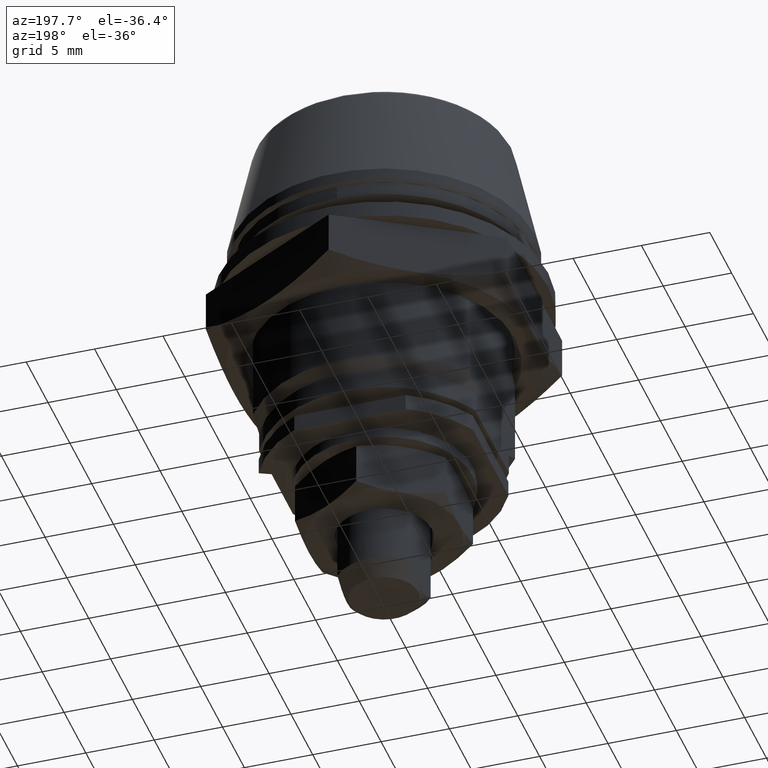
[diagram: clean part render]
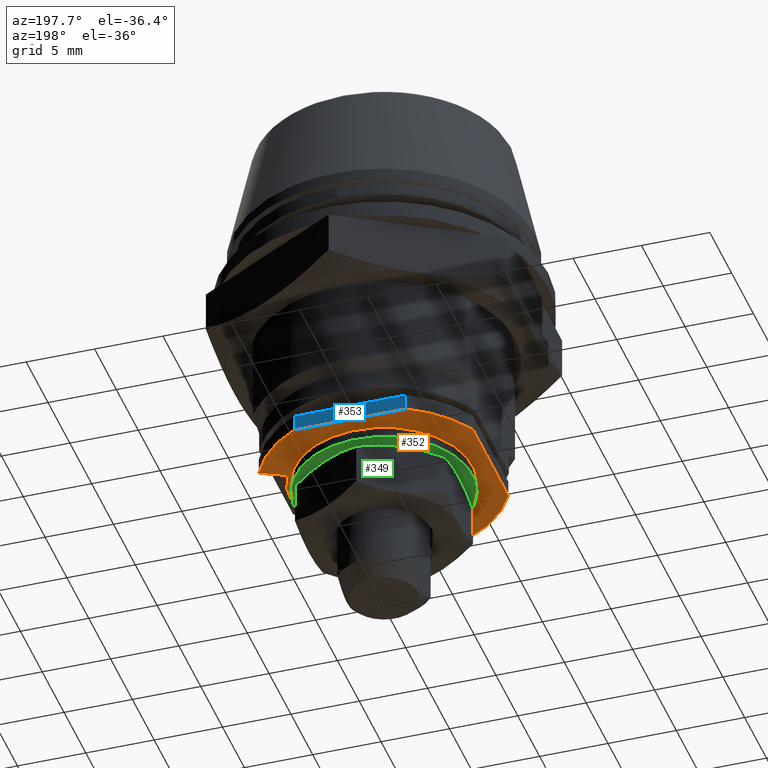
[diagram: same view with three faces highlighted in distinct colors, each labeled with its STEP entity id]
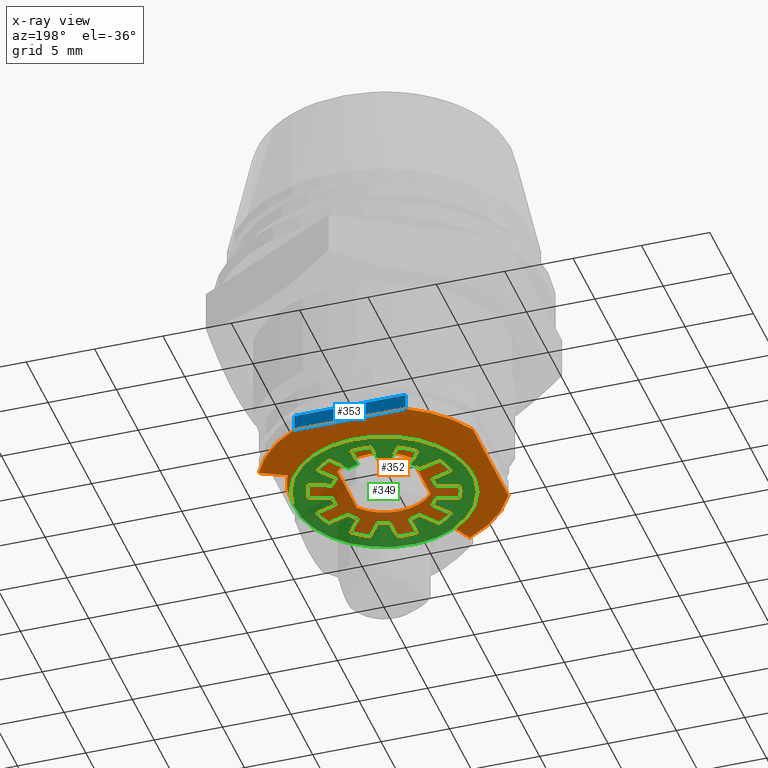
[diagram: x-ray of the same camera — body ghosted, the three highlighted faces saturated]
A machine part, auxiliary view with three faces highlighted in distinct colors.
The next image is the same camera in x-ray (body ghosted, the three faces saturated) — at least one of them is partly hidden behind the body in this view.
Their STEP definitions:

[orange] entity #352 — the highlighted planar face has unit normal (0, 0, -1).
#352=ADVANCED_FACE('',(#1342,#1343),#1341,.T.);
#1341=PLANE('',#2489);
#1342=FACE_OUTER_BOUND('',#2490,.T.);
#1343=FACE_BOUND('',#2491,.T.);
#2486=CARTESIAN_POINT('',(9.77266753242E+000,-9.77266753244E+000,-2.13000000000E+001));
#2487=DIRECTION('',(0.00000000000E+000,0.00000000000E+000,-1.00000000000E+000));
#2488=DIRECTION('',(-1.00000000000E+000,0.00000000000E+000,0.00000000000E+000));
#2489=AXIS2_PLACEMENT_3D('',#2486,#2487,#2488);
#2490=EDGE_LOOP('',(#3364,#3365,#3366,#3367,#3368,#3369,#3370,#3371));
#2491=EDGE_LOOP('',(#3372,#3373,#3374,#3375));
#3364=ORIENTED_EDGE('',*,*,#3900,.F.);
#3365=ORIENTED_EDGE('',*,*,#3901,.F.);
#3366=ORIENTED_EDGE('',*,*,#3902,.F.);
#3367=ORIENTED_EDGE('',*,*,#3903,.F.);
#3368=ORIENTED_EDGE('',*,*,#3904,.F.);
#3369=ORIENTED_EDGE('',*,*,#3905,.F.);
#3370=ORIENTED_EDGE('',*,*,#3906,.F.);
#3371=ORIENTED_EDGE('',*,*,#3907,.F.);
#3372=ORIENTED_EDGE('',*,*,#3908,.T.);
#3373=ORIENTED_EDGE('',*,*,#3909,.F.);
#3374=ORIENTED_EDGE('',*,*,#3910,.T.);
#3375=ORIENTED_EDGE('',*,*,#3911,.F.);
#3900=EDGE_CURVE('',#5579,#5580,#5581,.T.);
#3901=EDGE_CURVE('',#5587,#5579,#5588,.T.);
#3902=EDGE_CURVE('',#5594,#5587,#5595,.T.);
#3903=EDGE_CURVE('',#5601,#5594,#5602,.T.);
#3904=EDGE_CURVE('',#5608,#5601,#5609,.T.);
#3905=EDGE_CURVE('',#5615,#5608,#5616,.T.);
#3906=EDGE_CURVE('',#5622,#5615,#5623,.T.);
#3907=EDGE_CURVE('',#5580,#5622,#5629,.T.);
#3908=EDGE_CURVE('',#5635,#5636,#5637,.T.);
#3909=EDGE_CURVE('',#5643,#5636,#5644,.T.);
#3910=EDGE_CURVE('',#5643,#5650,#5651,.T.);
#3911=EDGE_CURVE('',#5635,#5650,#5657,.T.);
#5579=VERTEX_POINT('',#7540);
#5580=VERTEX_POINT('',#7541);
#5581=CIRCLE('',#7545,8.80000000000E+000);
#5587=VERTEX_POINT('',#7546);
#5588=LINE('',#7547,#7548);
#5594=VERTEX_POINT('',#7550);
#5595=CIRCLE('',#7554,8.79999999985E+000);
#5601=VERTEX_POINT('',#7555);
#5602=LINE('',#7556,#7557);
#5608=VERTEX_POINT('',#7559);
#5609=CIRCLE('',#7563,6.80000000021E+000);
#5615=VERTEX_POINT('',#7564);
#5616=LINE('',#7565,#7566);
#5622=VERTEX_POINT('',#7568);
#5623=CIRCLE('',#7572,8.80000000009E+000);
#5629=LINE('',#7573,#7574);
#5635=VERTEX_POINT('',#7576);
#5636=VERTEX_POINT('',#7577);
#5637=LINE('',#7578,#7579);
#5643=VERTEX_POINT('',#7581);
#5644=CIRCLE('',#7585,3.50000000014E+000);
#5650=VERTEX_POINT('',#7586);
#5651=LINE('',#7587,#7588);
#5657=CIRCLE('',#7593,3.50000000014E+000);
#7540=CARTESIAN_POINT('',(-4.07430975700E+000,7.80000000000E+000,-2.13000000000E+001));
#7541=CARTESIAN_POINT('',(-7.80000000000E+000,4.07430975800E+000,-2.13000000000E+001));
#7542=CARTESIAN_POINT('',(0.00000000000E+000,0.00000000000E+000,-2.13000000000E+001));
#7543=DIRECTION('',(0.00000000000E+000,0.00000000000E+000,1.00000000000E+000));
#7544=DIRECTION('',(4.62989745126E-001,-8.86363636387E-001,-0.00000000000E+000));
#7545=AXIS2_PLACEMENT_3D('',#7542,#7543,#7544);
#7546=CARTESIAN_POINT('',(4.07430975700E+000,7.80000000000E+000,-2.13000000000E+001));
#7547=CARTESIAN_POINT('',(4.07430975700E+000,7.80000000000E+000,-2.13000000000E+001));
#7548=VECTOR('',#7549,8.14861951400E+000);
#7549=DIRECTION('',(-1.00000000000E+000,0.00000000000E+000,0.00000000000E+000));
#7550=CARTESIAN_POINT('',(7.97550852600E+000,3.71904070300E+000,-2.13000000000E+001));
#7551=CARTESIAN_POINT('',(0.00000000000E+000,0.00000000000E+000,-2.13000000000E+001));
#7552=DIRECTION('',(0.00000000000E+000,-0.00000000000E+000,1.00000000000E+000));
#7553=DIRECTION('',(-9.06307787052E-001,-4.22618261708E-001,-0.00000000000E+000));
#7554=AXIS2_PLACEMENT_3D('',#7551,#7552,#7553);
#7555=CARTESIAN_POINT('',(6.16289295200E+000,2.87380418000E+000,-2.13000000000E+001));
#7556=CARTESIAN_POINT('',(6.16289295200E+000,2.87380418000E+000,-2.13000000000E+001));
#7557=VECTOR('',#7558,1.99999999973E+000);
#7558=DIRECTION('',(9.06307787122E-001,4.22618261557E-001,0.00000000000E+000));
#7559=CARTESIAN_POINT('',(-2.87380418000E+000,-6.16289295200E+000,-2.13000000000E+001));
#7560=CARTESIAN_POINT('',(0.00000000000E+000,0.00000000000E+000,-2.13000000000E+001));
#7561=DIRECTION('',(0.00000000000E+000,0.00000000000E+000,1.00000000000E+000));
#7562=DIRECTION('',(4.22618261752E-001,9.06307787031E-001,-0.00000000000E+000));
#7563=AXIS2_PLACEMENT_3D('',#7560,#7561,#7562);
#7564=CARTESIAN_POINT('',(-3.71904070306E+000,-7.97550852614E+000,-2.13000000000E+001));
#7565=CARTESIAN_POINT('',(-3.71904070300E+000,-7.97550852600E+000,-2.13000000000E+001));
#7566=VECTOR('',#7567,1.99999999973E+000);
#7567=DIRECTION('',(4.22618261557E-001,9.06307787122E-001,0.00000000000E+000));
#7568=CARTESIAN_POINT('',(-7.80000000000E+000,-4.07430975800E+000,-2.13000000000E+001));
#7569=CARTESIAN_POINT('',(0.00000000000E+000,0.00000000000E+000,-2.13000000000E+001));
#7570=DIRECTION('',(0.00000000000E+000,0.00000000000E+000,1.00000000000E+000));
#7571=DIRECTION('',(8.86363636340E-001,4.62989745215E-001,-0.00000000000E+000));
#7572=AXIS2_PLACEMENT_3D('',#7569,#7570,#7571);
#7573=CARTESIAN_POINT('',(-7.80000000000E+000,4.07430975800E+000,-2.13000000000E+001));
#7574=VECTOR('',#7575,8.14861951600E+000);
#7575=DIRECTION('',(0.00000000000E+000,-1.00000000000E+000,0.00000000000E+000));
#7576=CARTESIAN_POINT('',(2.70000000000E+000,-2.22710574500E+000,-2.13000000000E+001));
#7577=CARTESIAN_POINT('',(2.70000000000E+000,2.22710574500E+000,-2.13000000000E+001));
#7578=CARTESIAN_POINT('',(2.70000000000E+000,-2.22710574500E+000,-2.13000000000E+001));
#7579=VECTOR('',#7580,4.45421149000E+000);
#7580=DIRECTION('',(0.00000000000E+000,1.00000000000E+000,0.00000000000E+000));
#7581=CARTESIAN_POINT('',(-2.70000000011E+000,2.22710574522E+000,-2.13000000000E+001));
#7582=CARTESIAN_POINT('',(-3.37152809791E-014,1.21108864463E-014,-2.13000000000E+001));
#7583=DIRECTION('',(4.63618249515E-015,-5.54589877095E-015,-1.00000000000E+000));
#7584=DIRECTION('',(7.71428571429E-001,-6.36315927181E-001,7.10542735760E-015));
#7585=AXIS2_PLACEMENT_3D('',#7582,#7583,#7584);
#7586=CARTESIAN_POINT('',(-2.70000000000E+000,-2.22710574500E+000,-2.13000000000E+001));
#7587=CARTESIAN_POINT('',(-2.70000000000E+000,2.22710574500E+000,-2.13000000000E+001));
#7588=VECTOR('',#7589,4.45421149000E+000);
#7589=DIRECTION('',(0.00000000000E+000,-1.00000000000E+000,0.00000000000E+000));
#7590=CARTESIAN_POINT('',(1.24124578465E-014,3.45548202263E-014,-2.13000000000E+001));
#7591=DIRECTION('',(-4.63618249515E-015,5.54589877095E-015,-1.00000000000E+000));
#7592=DIRECTION('',(-7.71428571429E-001,6.36315927181E-001,7.10542735760E-015));
#7593=AXIS2_PLACEMENT_3D('',#7590,#7591,#7592);

[blue] entity #353 — the highlighted planar face has unit normal (0, 1, 0).
#353=ADVANCED_FACE('',(#1353),#1352,.T.);
#1352=PLANE('',#2495);
#1353=FACE_OUTER_BOUND('',#2496,.T.);
#2492=CARTESIAN_POINT('',(-4.88917170840E+000,7.80000000000E+000,-1.99800000000E+001));
#2493=DIRECTION('',(-0.00000000000E+000,1.00000000000E+000,0.00000000000E+000));
#2494=DIRECTION('',(1.00000000000E+000,0.00000000000E+000,0.00000000000E+000));
#2495=AXIS2_PLACEMENT_3D('',#2492,#2493,#2494);
#2496=EDGE_LOOP('',(#3376,#3377,#3378,#3379));
#3376=ORIENTED_EDGE('',*,*,#3901,.T.);
#3377=ORIENTED_EDGE('',*,*,#3912,.T.);
#3378=ORIENTED_EDGE('',*,*,#3913,.T.);
#3379=ORIENTED_EDGE('',*,*,#3914,.T.);
#3901=EDGE_CURVE('',#5587,#5579,#5588,.T.);
#3912=EDGE_CURVE('',#5579,#5663,#5664,.T.);
#3913=EDGE_CURVE('',#5663,#5670,#5671,.T.);
#3914=EDGE_CURVE('',#5670,#5587,#5677,.T.);
#5579=VERTEX_POINT('',#7540);
#5587=VERTEX_POINT('',#7546);
#5588=LINE('',#7547,#7548);
#5663=VERTEX_POINT('',#7594);
#5664=LINE('',#7595,#7596);
#5670=VERTEX_POINT('',#7598);
#5671=LINE('',#7599,#7600);
#5677=LINE('',#7602,#7603);
#7540=CARTESIAN_POINT('',(-4.07430975700E+000,7.80000000000E+000,-2.13000000000E+001));
#7546=CARTESIAN_POINT('',(4.07430975700E+000,7.80000000000E+000,-2.13000000000E+001));
#7547=CARTESIAN_POINT('',(4.07430975700E+000,7.80000000000E+000,-2.13000000000E+001));
#7548=VECTOR('',#7549,8.14861951400E+000);
#7549=DIRECTION('',(-1.00000000000E+000,0.00000000000E+000,0.00000000000E+000));
#7594=CARTESIAN_POINT('',(-4.07430975700E+000,7.80000000000E+000,-2.01000000000E+001));
#7595=CARTESIAN_POINT('',(-4.07430975700E+000,7.80000000000E+000,-2.13000000000E+001));
#7596=VECTOR('',#7597,1.20000000000E+000);
#7597=DIRECTION('',(0.00000000000E+000,0.00000000000E+000,1.00000000000E+000));
#7598=CARTESIAN_POINT('',(4.07430975700E+000,7.80000000000E+000,-2.01000000000E+001));
#7599=CARTESIAN_POINT('',(-4.07430975700E+000,7.80000000000E+000,-2.01000000000E+001));
#7600=VECTOR('',#7601,8.14861951400E+000);
#7601=DIRECTION('',(1.00000000000E+000,0.00000000000E+000,0.00000000000E+000));
#7602=CARTESIAN_POINT('',(4.07430975700E+000,7.80000000000E+000,-2.01000000000E+001));
#7603=VECTOR('',#7604,1.20000000000E+000);
#7604=DIRECTION('',(0.00000000000E+000,0.00000000000E+000,-1.00000000000E+000));

[green] entity #349 — the highlighted planar face has unit normal (0, 0, 1).
#349=ADVANCED_FACE('',(#1311,#1312),#1310,.F.);
#1310=PLANE('',#2473);
#1311=FACE_OUTER_BOUND('',#2474,.T.);
#1312=FACE_BOUND('',#2475,.T.);
#2470=CARTESIAN_POINT('',(-3.86160911235E+000,-1.54599636178E+001,-2.21000000000E+001));
#2471=DIRECTION('',(0.00000000000E+000,-0.00000000000E+000,1.00000000000E+000));
#2472=DIRECTION('',(9.51056516295E-001,3.09016994375E-001,0.00000000000E+000));
#2473=AXIS2_PLACEMENT_3D('',#2470,#2471,#2472);
#2474=EDGE_LOOP('',(#3314,#3315));
#2475=EDGE_LOOP('',(#3316,#3317,#3318,#3319,#3320,#3321,#3322,#3323,#3324,#3325,#3326,#3327,#3328,#3329,#3330,#3331,#3332,#3333,#3334,#3335,#3336,#3337,#3338,#3339,#3340,#3341,#3342,#3343,#3344,#3345,#3346,#3347,#3348,#3349,#3350,#3351,#3352,#3353,#3354,#3355));
#3314=ORIENTED_EDGE('',*,*,#3896,.F.);
#3315=ORIENTED_EDGE('',*,*,#3897,.F.);
#3316=ORIENTED_EDGE('',*,*,#3780,.T.);
#3317=ORIENTED_EDGE('',*,*,#3782,.T.);
#3318=ORIENTED_EDGE('',*,*,#3891,.T.);
#3319=ORIENTED_EDGE('',*,*,#3867,.T.);
#3320=ORIENTED_EDGE('',*,*,#3892,.T.);
#3321=ORIENTED_EDGE('',*,*,#3869,.T.);
#3322=ORIENTED_EDGE('',*,*,#3872,.T.);
#3323=ORIENTED_EDGE('',*,*,#3860,.T.);
#3324=ORIENTED_EDGE('',*,*,#3856,.T.);
#3325=ORIENTED_EDGE('',*,*,#3862,.T.);
#3326=ORIENTED_EDGE('',*,*,#3874,.T.);
#3327=ORIENTED_EDGE('',*,*,#3850,.T.);
#3328=ORIENTED_EDGE('',*,*,#3846,.T.);
#3329=ORIENTED_EDGE('',*,*,#3852,.T.);
#3330=ORIENTED_EDGE('',*,*,#3876,.T.);
#3331=ORIENTED_EDGE('',*,*,#3840,.T.);
#3332=ORIENTED_EDGE('',*,*,#3836,.T.);
#3333=ORIENTED_EDGE('',*,*,#3842,.T.);
#3334=ORIENTED_EDGE('',*,*,#3878,.T.);
#3335=ORIENTED_EDGE('',*,*,#3830,.T.);
#3336=ORIENTED_EDGE('',*,*,#3826,.T.);
#3337=ORIENTED_EDGE('',*,*,#3832,.T.);
#3338=ORIENTED_EDGE('',*,*,#3880,.T.);
#3339=ORIENTED_EDGE('',*,*,#3820,.T.);
#3340=ORIENTED_EDGE('',*,*,#3816,.T.);
#3341=ORIENTED_EDGE('',*,*,#3822,.T.);
#3342=ORIENTED_EDGE('',*,*,#3882,.T.);
#3343=ORIENTED_EDGE('',*,*,#3810,.T.);
#3344=ORIENTED_EDGE('',*,*,#3806,.T.);
#3345=ORIENTED_EDGE('',*,*,#3812,.T.);
#3346=ORIENTED_EDGE('',*,*,#3884,.T.);
#3347=ORIENTED_EDGE('',*,*,#3800,.T.);
#3348=ORIENTED_EDGE('',*,*,#3796,.T.);
#3349=ORIENTED_EDGE('',*,*,#3802,.T.);
#3350=ORIENTED_EDGE('',*,*,#3886,.T.);
#3351=ORIENTED_EDGE('',*,*,#3790,.T.);
#3352=ORIENTED_EDGE('',*,*,#3786,.T.);
#3353=ORIENTED_EDGE('',*,*,#3792,.T.);
#3354=ORIENTED_EDGE('',*,*,#3888,.T.);
#3355=ORIENTED_EDGE('',*,*,#3777,.T.);
#3777=EDGE_CURVE('',#4740,#4754,#4761,.T.);
#3780=EDGE_CURVE('',#4754,#4774,#4781,.T.);
#3782=EDGE_CURVE('',#4774,#4787,#4795,.T.);
#3786=EDGE_CURVE('',#4822,#4815,#4823,.T.);
#3790=EDGE_CURVE('',#4836,#4822,#4849,.T.);
#3792=EDGE_CURVE('',#4815,#4855,#4863,.T.);
#3796=EDGE_CURVE('',#4890,#4883,#4891,.T.);
#3800=EDGE_CURVE('',#4904,#4890,#4917,.T.);
#3802=EDGE_CURVE('',#4883,#4923,#4931,.T.);
#3806=EDGE_CURVE('',#4958,#4951,#4959,.T.);
#3810=EDGE_CURVE('',#4972,#4958,#4985,.T.);
#3812=EDGE_CURVE('',#4951,#4991,#4999,.T.);
#3816=EDGE_CURVE('',#5026,#5019,#5027,.T.);
#3820=EDGE_CURVE('',#5040,#5026,#5053,.T.);
#3822=EDGE_CURVE('',#5019,#5059,#5067,.T.);
#3826=EDGE_CURVE('',#5094,#5087,#5095,.T.);
#3830=EDGE_CURVE('',#5108,#5094,#5121,.T.);
#3832=EDGE_CURVE('',#5087,#5127,#5135,.T.);
#3836=EDGE_CURVE('',#5162,#5155,#5163,.T.);
#3840=EDGE_CURVE('',#5176,#5162,#5189,.T.);
#3842=EDGE_CURVE('',#5155,#5195,#5203,.T.);
#3846=EDGE_CURVE('',#5230,#5223,#5231,.T.);
#3850=EDGE_CURVE('',#5244,#5230,#5257,.T.);
#3852=EDGE_CURVE('',#5223,#5263,#5271,.T.);
#3856=EDGE_CURVE('',#5298,#5291,#5299,.T.);
#3860=EDGE_CURVE('',#5312,#5298,#5325,.T.);
#3862=EDGE_CURVE('',#5291,#5331,#5339,.T.);
#3867=EDGE_CURVE('',#5352,#5366,#5373,.T.);
#3869=EDGE_CURVE('',#5387,#5379,#5388,.T.);
#3872=EDGE_CURVE('',#5379,#5312,#5407,.T.);
#3874=EDGE_CURVE('',#5331,#5244,#5419,.T.);
#3876=EDGE_CURVE('',#5263,#5176,#5431,.T.);
#3878=EDGE_CURVE('',#5195,#5108,#5443,.T.);
#3880=EDGE_CURVE('',#5127,#5040,#5455,.T.);
#3882=EDGE_CURVE('',#5059,#4972,#5467,.T.);
#3884=EDGE_CURVE('',#4991,#4904,#5479,.T.);
#3886=EDGE_CURVE('',#4923,#4836,#5491,.T.);
#3888=EDGE_CURVE('',#4855,#4740,#5503,.T.);
#3891=EDGE_CURVE('',#4787,#5352,#5521,.T.);
#3892=EDGE_CURVE('',#5366,#5387,#5527,.T.);
#3896=EDGE_CURVE('',#5553,#5554,#5555,.T.);
#3897=EDGE_CURVE('',#5554,#5553,#5561,.T.);
#4740=VERTEX_POINT('',#7037);
#4754=VERTEX_POINT('',#7045);
#4761=LINE('',#7049,#7050);
#4774=VERTEX_POINT('',#7057);
#4781=CIRCLE('',#7064,5.35000000008E+000);
#4787=VERTEX_POINT('',#7065);
#4795=LINE('',#7070,#7071);
#4815=VERTEX_POINT('',#7082);
#4822=VERTEX_POINT('',#7086);
#4823=CIRCLE('',#7090,5.35000000001E+000);
#4836=VERTEX_POINT('',#7095);
#4849=LINE('',#7102,#7103);
#4855=VERTEX_POINT('',#7105);
#4863=LINE('',#7110,#7111);
#4883=VERTEX_POINT('',#7122);
#4890=VERTEX_POINT('',#7126);
#4891=CIRCLE('',#7130,5.35000000001E+000);
#4904=VERTEX_POINT('',#7135);
#4917=LINE('',#7142,#7143);
#4923=VERTEX_POINT('',#7145);
#4931=LINE('',#7150,#7151);
#4951=VERTEX_POINT('',#7162);
#4958=VERTEX_POINT('',#7166);
#4959=CIRCLE('',#7170,5.35000000008E+000);
#4972=VERTEX_POINT('',#7175);
#4985=LINE('',#7182,#7183);
#4991=VERTEX_POINT('',#7185);
#4999=LINE('',#7190,#7191);
#5019=VERTEX_POINT('',#7202);
#5026=VERTEX_POINT('',#7206);
#5027=CIRCLE('',#7210,5.34999999974E+000);
#5040=VERTEX_POINT('',#7215);
#5053=LINE('',#7222,#7223);
#5059=VERTEX_POINT('',#7225);
#5067=LINE('',#7230,#7231);
#5087=VERTEX_POINT('',#7242);
#5094=VERTEX_POINT('',#7246);
#5095=CIRCLE('',#7250,5.35000000008E+000);
#5108=VERTEX_POINT('',#7255);
#5121=LINE('',#7262,#7263);
#5127=VERTEX_POINT('',#7265);
#5135=LINE('',#7270,#7271);
#5155=VERTEX_POINT('',#7282);
#5162=VERTEX_POINT('',#7286);
#5163=CIRCLE('',#7290,5.35000000001E+000);
#5176=VERTEX_POINT('',#7295);
#5189=LINE('',#7302,#7303);
#5195=VERTEX_POINT('',#7305);
#5203=LINE('',#7310,#7311);
#5223=VERTEX_POINT('',#7322);
#5230=VERTEX_POINT('',#7326);
#5231=CIRCLE('',#7330,5.35000000001E+000);
#5244=VERTEX_POINT('',#7335);
#5257=LINE('',#7342,#7343);
#5263=VERTEX_POINT('',#7345);
#5271=LINE('',#7350,#7351);
#5291=VERTEX_POINT('',#7362);
#5298=VERTEX_POINT('',#7366);
#5299=CIRCLE('',#7370,5.35000000008E+000);
#5312=VERTEX_POINT('',#7375);
#5325=LINE('',#7382,#7383);
#5331=VERTEX_POINT('',#7385);
#5339=LINE('',#7390,#7391);
#5352=VERTEX_POINT('',#7397);
#5366=VERTEX_POINT('',#7405);
#5373=LINE('',#7409,#7410);
#5379=VERTEX_POINT('',#7412);
#5387=VERTEX_POINT('',#7417);
#5388=LINE('',#7418,#7419);
#5407=CIRCLE('',#7431,3.69999999997E+000);
#5419=CIRCLE('',#7439,3.70000000015E+000);
#5431=CIRCLE('',#7447,3.70000000000E+000);
#5443=CIRCLE('',#7455,3.70000000015E+000);
#5455=CIRCLE('',#7463,3.69999999997E+000);
#5467=CIRCLE('',#7471,3.69999999997E+000);
#5479=CIRCLE('',#7479,3.70000000015E+000);
#5491=CIRCLE('',#7487,3.70000000000E+000);
#5503=CIRCLE('',#7495,3.70000000015E+000);
#5521=CIRCLE('',#7507,3.69999999997E+000);
#5527=CIRCLE('',#7511,5.34999999987E+000);
#5553=VERTEX_POINT('',#7526);
#5554=VERTEX_POINT('',#7527);
#5555=CIRCLE('',#7531,6.50000000000E+000);
#5561=CIRCLE('',#7535,6.50000000000E+000);
#7037=CARTESIAN_POINT('',(3.21409495578E+000,-1.83291942514E+000,-2.21000000000E+001));
#7045=CARTESIAN_POINT('',(4.80614440244E+000,-2.35020764689E+000,-2.21000000000E+001));
#7049=CARTESIAN_POINT('',(3.21409495578E+000,-1.83291942514E+000,-2.21000000000E+001));
#7050=VECTOR('',#7051,1.67397985202E+000);
#7051=DIRECTION('',(9.51056516444E-001,-3.09016993917E-001,0.00000000000E+000));
#7057=CARTESIAN_POINT('',(5.26966989376E+000,-9.23622873121E-001,-2.21000000000E+001));
#7061=CARTESIAN_POINT('',(0.00000000000E+000,0.00000000000E+000,-2.21000000000E+001));
#7062=DIRECTION('',(0.00000000000E+000,0.00000000000E+000,1.00000000000E+000));
#7063=DIRECTION('',(-8.98344748110E-001,4.39291148947E-001,-0.00000000000E+000));
#7064=AXIS2_PLACEMENT_3D('',#7061,#7062,#7063);
#7065=CARTESIAN_POINT('',(3.67762044679E+000,-4.06334650421E-001,-2.21000000000E+001));
#7070=CARTESIAN_POINT('',(5.26966989376E+000,-9.23622873121E-001,-2.21000000000E+001));
#7071=VECTOR('',#7072,1.67397985261E+000);
#7072=DIRECTION('',(-9.51056516295E-001,3.09016994376E-001,0.00000000000E+000));
#7082=CARTESIAN_POINT('',(3.72036059496E+000,-3.84466084854E+000,-2.21000000000E+001));
#7086=CARTESIAN_POINT('',(2.50683510396E+000,-4.72633872726E+000,-2.21000000000E+001));
#7087=CARTESIAN_POINT('',(0.00000000000E+000,0.00000000000E+000,-2.21000000000E+001));
#7088=DIRECTION('',(0.00000000000E+000,0.00000000000E+000,1.00000000000E+000));
#7089=DIRECTION('',(-4.68567309124E-001,8.83427799438E-001,-0.00000000000E+000));
#7090=AXIS2_PLACEMENT_3D('',#7087,#7088,#7089);
#7095=CARTESIAN_POINT('',(1.52289443366E+000,-3.37206057833E+000,-2.21000000000E+001));
#7102=CARTESIAN_POINT('',(1.52289443366E+000,-3.37206057833E+000,-2.21000000000E+001));
#7103=VECTOR('',#7104,1.67397985273E+000);
#7104=DIRECTION('',(5.87785252427E-001,-8.09016994277E-001,0.00000000000E+000));
#7105=CARTESIAN_POINT('',(2.73641992562E+000,-2.49038269930E+000,-2.21000000000E+001));
#7110=CARTESIAN_POINT('',(3.72036059496E+000,-3.84466084854E+000,-2.21000000000E+001));
#7111=VECTOR('',#7112,1.67397985242E+000);
#7112=DIRECTION('',(-5.87785251968E-001,8.09016994611E-001,0.00000000000E+000));
#7122=CARTESIAN_POINT('',(7.50000000026E-001,-5.29716905556E+000,-2.21000000000E+001));
#7126=CARTESIAN_POINT('',(-7.49999999688E-001,-5.29716905501E+000,-2.21000000000E+001));
#7127=CARTESIAN_POINT('',(0.00000000000E+000,0.00000000000E+000,-2.21000000000E+001));
#7128=DIRECTION('',(0.00000000000E+000,0.00000000000E+000,1.00000000000E+000));
#7129=DIRECTION('',(1.40186915837E-001,9.90125057065E-001,-0.00000000000E+000));
#7130=AXIS2_PLACEMENT_3D('',#7127,#7128,#7129);
#7135=CARTESIAN_POINT('',(-7.50000000360E-001,-3.62318920259E+000,-2.21000000000E+001));
#7142=CARTESIAN_POINT('',(-7.50000000360E-001,-3.62318920259E+000,-2.21000000000E+001));
#7143=VECTOR('',#7144,1.67397985242E+000);
#7144=DIRECTION('',(4.01690488656E-010,-1.00000000000E+000,0.00000000000E+000));
#7145=CARTESIAN_POINT('',(7.50000000305E-001,-3.62318920283E+000,-2.21000000000E+001));
#7150=CARTESIAN_POINT('',(7.50000000026E-001,-5.29716905556E+000,-2.21000000000E+001));
#7151=VECTOR('',#7152,1.67397985273E+000);
#7152=DIRECTION('',(1.66450499066E-010,1.00000000000E+000,0.00000000000E+000));
#7162=CARTESIAN_POINT('',(-2.50683510433E+000,-4.72633872679E+000,-2.21000000000E+001));
#7166=CARTESIAN_POINT('',(-3.72036059530E+000,-3.84466084875E+000,-2.21000000000E+001));
#7167=CARTESIAN_POINT('',(0.00000000000E+000,0.00000000000E+000,-2.21000000000E+001));
#7168=DIRECTION('',(0.00000000000E+000,0.00000000000E+000,1.00000000000E+000));
#7169=DIRECTION('',(6.95394503782E-001,7.18628196016E-001,-0.00000000000E+000));
#7170=AXIS2_PLACEMENT_3D('',#7167,#7168,#7169);
#7175=CARTESIAN_POINT('',(-2.73641992530E+000,-2.49038269975E+000,-2.21000000000E+001));
#7182=CARTESIAN_POINT('',(-2.73641992530E+000,-2.49038269975E+000,-2.21000000000E+001));
#7183=VECTOR('',#7184,1.67397985261E+000);
#7184=DIRECTION('',(-5.87785252291E-001,-8.09016994376E-001,0.00000000000E+000));
#7185=CARTESIAN_POINT('',(-1.52289443402E+000,-3.37206057874E+000,-2.21000000000E+001));
#7190=CARTESIAN_POINT('',(-2.50683510433E+000,-4.72633872679E+000,-2.21000000000E+001));
#7191=VECTOR('',#7192,1.67397985202E+000);
#7192=DIRECTION('',(5.87785252682E-001,8.09016994092E-001,0.00000000000E+000));
#7202=CARTESIAN_POINT('',(-4.80614440189E+000,-2.35020764729E+000,-2.21000000000E+001));
#7206=CARTESIAN_POINT('',(-5.26966989346E+000,-9.23622872851E-001,-2.21000000000E+001));
#7207=CARTESIAN_POINT('',(0.00000000000E+000,0.00000000000E+000,-2.21000000000E+001));
#7208=DIRECTION('',(0.00000000000E+000,0.00000000000E+000,1.00000000000E+000));
#7209=DIRECTION('',(9.84985026862E-001,1.72639789326E-001,-0.00000000000E+000));
#7210=AXIS2_PLACEMENT_3D('',#7207,#7208,#7209);
#7215=CARTESIAN_POINT('',(-3.67762044706E+000,-4.06334650341E-001,-2.21000000000E+001));
#7222=CARTESIAN_POINT('',(-3.67762044706E+000,-4.06334650341E-001,-2.21000000000E+001));
#7223=VECTOR('',#7224,1.67397985200E+000);
#7224=DIRECTION('',(-9.51056516295E-001,-3.09016994375E-001,0.00000000000E+000));
#7225=CARTESIAN_POINT('',(-3.21409495550E+000,-1.83291942478E+000,-2.21000000000E+001));
#7230=CARTESIAN_POINT('',(-4.80614440189E+000,-2.35020764729E+000,-2.21000000000E+001));
#7231=VECTOR('',#7232,1.67397985200E+000);
#7232=DIRECTION('',(9.51056516295E-001,3.09016994375E-001,0.00000000000E+000));
#7242=CARTESIAN_POINT('',(-5.26966989376E+000,9.23622873121E-001,-2.21000000000E+001));
#7246=CARTESIAN_POINT('',(-4.80614440244E+000,2.35020764689E+000,-2.21000000000E+001));
#7247=CARTESIAN_POINT('',(0.00000000000E+000,0.00000000000E+000,-2.21000000000E+001));
#7248=DIRECTION('',(0.00000000000E+000,0.00000000000E+000,1.00000000000E+000));
#7249=DIRECTION('',(8.98344748110E-001,-4.39291148947E-001,-0.00000000000E+000));
#7250=AXIS2_PLACEMENT_3D('',#7247,#7248,#7249);
#7255=CARTESIAN_POINT('',(-3.21409495578E+000,1.83291942514E+000,-2.21000000000E+001));
#7262=CARTESIAN_POINT('',(-3.21409495578E+000,1.83291942514E+000,-2.21000000000E+001));
#7263=VECTOR('',#7264,1.67397985202E+000);
#7264=DIRECTION('',(-9.51056516444E-001,3.09016993917E-001,0.00000000000E+000));
#7265=CARTESIAN_POINT('',(-3.67762044679E+000,4.06334650421E-001,-2.21000000000E+001));
#7270=CARTESIAN_POINT('',(-5.26966989376E+000,9.23622873121E-001,-2.21000000000E+001));
#7271=VECTOR('',#7272,1.67397985261E+000);
#7272=DIRECTION('',(9.51056516295E-001,-3.09016994376E-001,0.00000000000E+000));
#7282=CARTESIAN_POINT('',(-3.72036059496E+000,3.84466084854E+000,-2.21000000000E+001));
#7286=CARTESIAN_POINT('',(-2.50683510396E+000,4.72633872726E+000,-2.21000000000E+001));
#7287=CARTESIAN_POINT('',(0.00000000000E+000,0.00000000000E+000,-2.21000000000E+001));
#7288=DIRECTION('',(0.00000000000E+000,0.00000000000E+000,1.00000000000E+000));
#7289=DIRECTION('',(4.68567309124E-001,-8.83427799438E-001,-0.00000000000E+000));
#7290=AXIS2_PLACEMENT_3D('',#7287,#7288,#7289);
#7295=CARTESIAN_POINT('',(-1.52289443366E+000,3.37206057833E+000,-2.21000000000E+001));
#7302=CARTESIAN_POINT('',(-1.52289443366E+000,3.37206057833E+000,-2.21000000000E+001));
#7303=VECTOR('',#7304,1.67397985273E+000);
#7304=DIRECTION('',(-5.87785252427E-001,8.09016994277E-001,0.00000000000E+000));
#7305=CARTESIAN_POINT('',(-2.73641992562E+000,2.49038269930E+000,-2.21000000000E+001));
#7310=CARTESIAN_POINT('',(-3.72036059496E+000,3.84466084854E+000,-2.21000000000E+001));
#7311=VECTOR('',#7312,1.67397985242E+000);
#7312=DIRECTION('',(5.87785251968E-001,-8.09016994611E-001,0.00000000000E+000));
#7322=CARTESIAN_POINT('',(-7.50000000026E-001,5.29716905556E+000,-2.21000000000E+001));
#7326=CARTESIAN_POINT('',(7.49999999688E-001,5.29716905501E+000,-2.21000000000E+001));
#7327=CARTESIAN_POINT('',(0.00000000000E+000,0.00000000000E+000,-2.21000000000E+001));
#7328=DIRECTION('',(0.00000000000E+000,-0.00000000000E+000,1.00000000000E+000));
#7329=DIRECTION('',(-1.40186915837E-001,-9.90125057065E-001,-0.00000000000E+000));
#7330=AXIS2_PLACEMENT_3D('',#7327,#7328,#7329);
#7335=CARTESIAN_POINT('',(7.50000000360E-001,3.62318920259E+000,-2.21000000000E+001));
#7342=CARTESIAN_POINT('',(7.50000000360E-001,3.62318920259E+000,-2.21000000000E+001));
#7343=VECTOR('',#7344,1.67397985242E+000);
#7344=DIRECTION('',(-4.01690488656E-010,1.00000000000E+000,0.00000000000E+000));
#7345=CARTESIAN_POINT('',(-7.50000000305E-001,3.62318920283E+000,-2.21000000000E+001));
#7350=CARTESIAN_POINT('',(-7.50000000026E-001,5.29716905556E+000,-2.21000000000E+001));
#7351=VECTOR('',#7352,1.67397985273E+000);
#7352=DIRECTION('',(-1.66450499066E-010,-1.00000000000E+000,0.00000000000E+000));
#7362=CARTESIAN_POINT('',(2.50683510433E+000,4.72633872679E+000,-2.21000000000E+001));
#7366=CARTESIAN_POINT('',(3.72036059530E+000,3.84466084875E+000,-2.21000000000E+001));
#7367=CARTESIAN_POINT('',(0.00000000000E+000,0.00000000000E+000,-2.21000000000E+001));
#7368=DIRECTION('',(0.00000000000E+000,-0.00000000000E+000,1.00000000000E+000));
#7369=DIRECTION('',(-6.95394503782E-001,-7.18628196016E-001,-0.00000000000E+000));
#7370=AXIS2_PLACEMENT_3D('',#7367,#7368,#7369);
#7375=CARTESIAN_POINT('',(2.73641992530E+000,2.49038269975E+000,-2.21000000000E+001));
#7382=CARTESIAN_POINT('',(2.73641992530E+000,2.49038269975E+000,-2.21000000000E+001));
#7383=VECTOR('',#7384,1.67397985261E+000);
#7384=DIRECTION('',(5.87785252291E-001,8.09016994376E-001,0.00000000000E+000));
#7385=CARTESIAN_POINT('',(1.52289443402E+000,3.37206057874E+000,-2.21000000000E+001));
#7390=CARTESIAN_POINT('',(2.50683510433E+000,4.72633872679E+000,-2.21000000000E+001));
#7391=VECTOR('',#7392,1.67397985202E+000);
#7392=DIRECTION('',(-5.87785252682E-001,-8.09016994092E-001,0.00000000000E+000));
#7397=CARTESIAN_POINT('',(3.67762044706E+000,4.06334650341E-001,-2.21000000000E+001));
#7405=CARTESIAN_POINT('',(5.26966989346E+000,9.23622872851E-001,-2.21000000000E+001));
#7409=CARTESIAN_POINT('',(3.67762044706E+000,4.06334650341E-001,-2.21000000000E+001));
#7410=VECTOR('',#7411,1.67397985200E+000);
#7411=DIRECTION('',(9.51056516295E-001,3.09016994375E-001,0.00000000000E+000));
#7412=CARTESIAN_POINT('',(3.21409495550E+000,1.83291942478E+000,-2.21000000000E+001));
#7417=CARTESIAN_POINT('',(4.80614440189E+000,2.35020764729E+000,-2.21000000000E+001));
#7418=CARTESIAN_POINT('',(4.80614440189E+000,2.35020764729E+000,-2.21000000000E+001));
#7419=VECTOR('',#7420,1.67397985200E+000);
#7420=DIRECTION('',(-9.51056516295E-001,-3.09016994375E-001,0.00000000000E+000));
#7428=CARTESIAN_POINT('',(0.00000000000E+000,0.00000000000E+000,-2.21000000000E+001));
#7429=DIRECTION('',(0.00000000000E+000,-0.00000000000E+000,1.00000000000E+000));
#7430=DIRECTION('',(-8.68674312275E-001,-4.95383628307E-001,-0.00000000000E+000));
#7431=AXIS2_PLACEMENT_3D('',#7428,#7429,#7430);
#7436=CARTESIAN_POINT('',(0.00000000000E+000,0.00000000000E+000,-2.21000000000E+001));
#7437=DIRECTION('',(0.00000000000E+000,-0.00000000000E+000,1.00000000000E+000));
#7438=DIRECTION('',(-4.11593090218E-001,-9.11367723855E-001,-0.00000000000E+000));
#7439=AXIS2_PLACEMENT_3D('',#7436,#7437,#7438);
#7444=CARTESIAN_POINT('',(0.00000000000E+000,0.00000000000E+000,-2.21000000000E+001));
#7445=DIRECTION('',(0.00000000000E+000,0.00000000000E+000,1.00000000000E+000));
#7446=DIRECTION('',(2.02702702785E-001,-9.79240325091E-001,-0.00000000000E+000));
#7447=AXIS2_PLACEMENT_3D('',#7444,#7445,#7446);
#7452=CARTESIAN_POINT('',(0.00000000000E+000,0.00000000000E+000,-2.21000000000E+001));
#7453=DIRECTION('',(0.00000000000E+000,0.00000000000E+000,1.00000000000E+000));
#7454=DIRECTION('',(7.39572952916E-001,-6.73076405258E-001,-0.00000000000E+000));
#7455=AXIS2_PLACEMENT_3D('',#7452,#7453,#7454);
#7460=CARTESIAN_POINT('',(0.00000000000E+000,0.00000000000E+000,-2.21000000000E+001));
#7461=DIRECTION('',(0.00000000000E+000,0.00000000000E+000,1.00000000000E+000));
#7462=DIRECTION('',(9.93951472150E-001,-1.09820175794E-001,-0.00000000000E+000));
#7463=AXIS2_PLACEMENT_3D('',#7460,#7461,#7462);
#7468=CARTESIAN_POINT('',(0.00000000000E+000,0.00000000000E+000,-2.21000000000E+001));
#7469=DIRECTION('',(0.00000000000E+000,0.00000000000E+000,1.00000000000E+000));
#7470=DIRECTION('',(8.68674312275E-001,4.95383628307E-001,-0.00000000000E+000));
#7471=AXIS2_PLACEMENT_3D('',#7468,#7469,#7470);
#7476=CARTESIAN_POINT('',(0.00000000000E+000,0.00000000000E+000,-2.21000000000E+001));
#7477=DIRECTION('',(0.00000000000E+000,0.00000000000E+000,1.00000000000E+000));
#7478=DIRECTION('',(4.11593090218E-001,9.11367723855E-001,-0.00000000000E+000));
#7479=AXIS2_PLACEMENT_3D('',#7476,#7477,#7478);
#7484=CARTESIAN_POINT('',(0.00000000000E+000,0.00000000000E+000,-2.21000000000E+001));
#7485=DIRECTION('',(0.00000000000E+000,0.00000000000E+000,1.00000000000E+000));
#7486=DIRECTION('',(-2.02702702785E-001,9.79240325091E-001,-0.00000000000E+000));
#7487=AXIS2_PLACEMENT_3D('',#7484,#7485,#7486);
#7492=CARTESIAN_POINT('',(0.00000000000E+000,0.00000000000E+000,-2.21000000000E+001));
#7493=DIRECTION('',(0.00000000000E+000,0.00000000000E+000,1.00000000000E+000));
#7494=DIRECTION('',(-7.39572952916E-001,6.73076405258E-001,-0.00000000000E+000));
#7495=AXIS2_PLACEMENT_3D('',#7492,#7493,#7494);
#7504=CARTESIAN_POINT('',(0.00000000000E+000,0.00000000000E+000,-2.21000000000E+001));
#7505=DIRECTION('',(0.00000000000E+000,0.00000000000E+000,1.00000000000E+000));
#7506=DIRECTION('',(-9.93951472150E-001,1.09820175794E-001,-0.00000000000E+000));
#7507=AXIS2_PLACEMENT_3D('',#7504,#7505,#7506);
#7508=CARTESIAN_POINT('',(0.00000000000E+000,0.00000000000E+000,-2.21000000000E+001));
#7509=DIRECTION('',(0.00000000000E+000,-0.00000000000E+000,1.00000000000E+000));
#7510=DIRECTION('',(-9.51056516295E-001,-3.09016994375E-001,-0.00000000000E+000));
#7511=AXIS2_PLACEMENT_3D('',#7508,#7509,#7510);
#7526=CARTESIAN_POINT('',(6.18186735592E+000,2.00861046344E+000,-2.21000000000E+001));
#7527=CARTESIAN_POINT('',(-6.18186735592E+000,-2.00861046344E+000,-2.21000000000E+001));
#7528=CARTESIAN_POINT('',(0.00000000000E+000,0.00000000000E+000,-2.21000000000E+001));
#7529=DIRECTION('',(0.00000000000E+000,-0.00000000000E+000,1.00000000000E+000));
#7530=DIRECTION('',(-9.51056516295E-001,-3.09016994375E-001,-0.00000000000E+000));
#7531=AXIS2_PLACEMENT_3D('',#7528,#7529,#7530);
#7532=CARTESIAN_POINT('',(0.00000000000E+000,0.00000000000E+000,-2.21000000000E+001));
#7533=DIRECTION('',(0.00000000000E+000,-0.00000000000E+000,1.00000000000E+000));
#7534=DIRECTION('',(-9.51056516295E-001,-3.09016994375E-001,-0.00000000000E+000));
#7535=AXIS2_PLACEMENT_3D('',#7532,#7533,#7534);